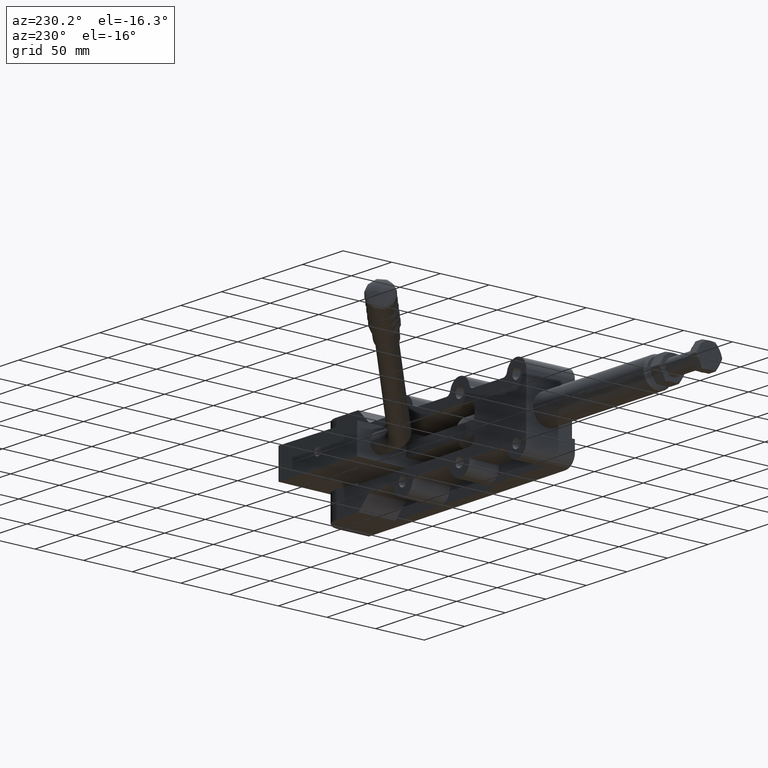
[diagram: clean part render]
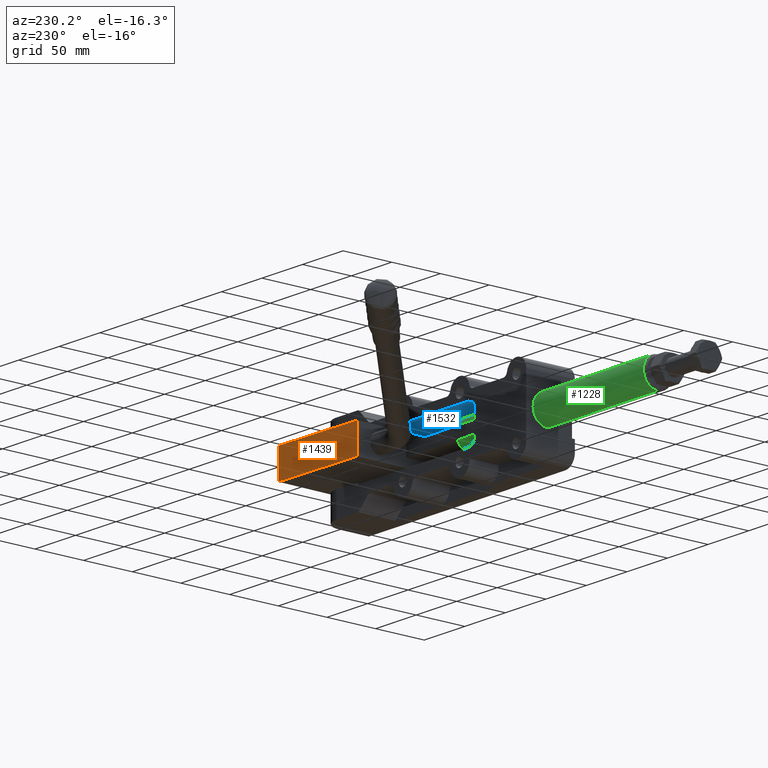
[diagram: same view with three faces highlighted in distinct colors, each labeled with its STEP entity id]
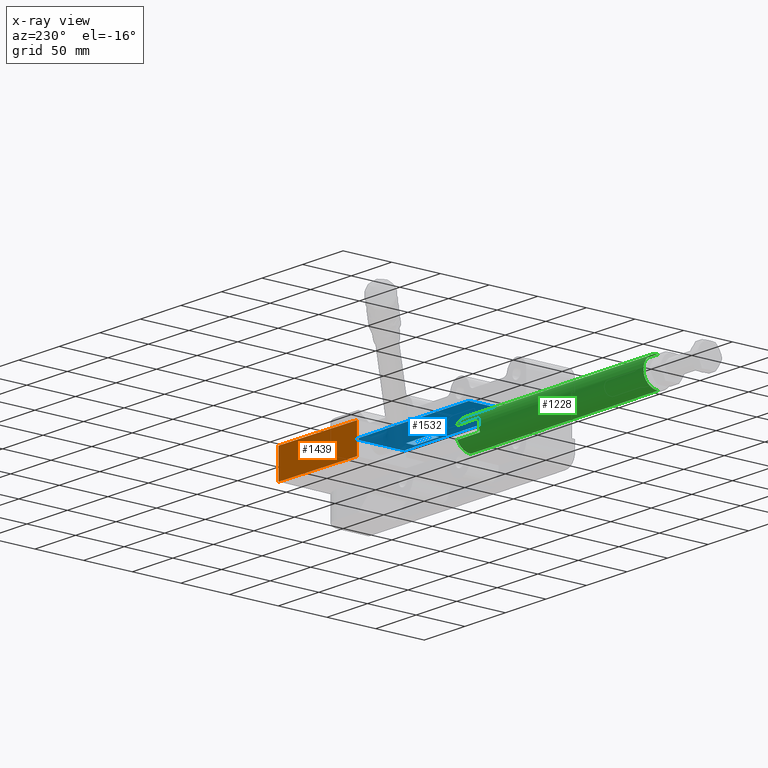
[diagram: x-ray of the same camera — body ghosted, the three highlighted faces saturated]
A machine part, auxiliary view with three faces highlighted in distinct colors.
The next image is the same camera in x-ray (body ghosted, the three faces saturated) — at least one of them is partly hidden behind the body in this view.
Their STEP definitions:

[orange] entity #1439 — the highlighted planar face has unit normal (-0.0179, 0.9998, -0).
#17 = CARTESIAN_POINT ( 'NONE',  ( 32.06023788298323800, 94.56523584020034400, -14.74999999999975500 ) ) ;
#46 = EDGE_CURVE ( 'NONE', #2836, #2387, #5923, .T. ) ;
#82 = EDGE_CURVE ( 'NONE', #1716, #4617, #1524, .T. ) ;
#145 = VECTOR ( 'NONE', #2389, 1000.000000000000100 ) ;
#153 = AXIS2_PLACEMENT_3D ( 'NONE', #2150, #6640, #6621 ) ;
#214 = FACE_OUTER_BOUND ( 'NONE', #6094, .T. ) ;
#334 = ORIENTED_EDGE ( 'NONE', *, *, #46, .T. ) ;
#382 = CIRCLE ( 'NONE', #6369, 4.250000000000008900 ) ;
#940 = LINE ( 'NONE', #6187, #1267 ) ;
#1267 = VECTOR ( 'NONE', #1398, 1000.000000000000000 ) ;
#1398 = DIRECTION ( 'NONE',  ( -9.059614584387263000E-016, 2.005522244806321500E-015, -1.000000000000000000 ) ) ;
#1420 = EDGE_CURVE ( 'NONE', #4689, #4672, #382, .T. ) ;
#1439 = ADVANCED_FACE ( 'NONE', ( #4235, #214 ), #2444, .T. ) ;
#1454 = DIRECTION ( 'NONE',  ( -0.9999995775315530000, 0.0009192043927261506100, 0.0000000000000000000 ) ) ;
#1479 = EDGE_LOOP ( 'NONE', ( #1862, #6175 ) ) ;
#1524 = LINE ( 'NONE', #1855, #145 ) ;
#1626 = AXIS2_PLACEMENT_3D ( 'NONE', #4588, #4688, #6670 ) ;
#1716 = VERTEX_POINT ( 'NONE', #17 ) ;
#1855 = CARTESIAN_POINT ( 'NONE',  ( 32.06023788298323800, 94.56523584020034400, -14.74999999999975500 ) ) ;
#1862 = ORIENTED_EDGE ( 'NONE', *, *, #2807, .F. ) ;
#2150 = CARTESIAN_POINT ( 'NONE',  ( 79.56021781573203100, 94.52157363154587700, 0.1000000000002443800 ) ) ;
#2376 = CARTESIAN_POINT ( 'NONE',  ( 127.0601977484807900, 94.47791142289131000, 14.95000000000015600 ) ) ;
#2387 = VERTEX_POINT ( 'NONE', #5944 ) ;
#2389 = DIRECTION ( 'NONE',  ( 0.9999995775315530000, -0.0009192043927261667600, -9.078045605557318500E-016 ) ) ;
#2444 = PLANE ( 'NONE',  #1626 ) ;
#2527 = CARTESIAN_POINT ( 'NONE',  ( 79.56021781573203100, 94.52157363154587700, 0.1000000000002443800 ) ) ;
#2688 = CARTESIAN_POINT ( 'NONE',  ( 127.0601977484807600, 94.47791142289135300, -14.74999999999984200 ) ) ;
#2807 = EDGE_CURVE ( 'NONE', #4672, #4689, #3051, .T. ) ;
#2836 = VERTEX_POINT ( 'NONE', #5264 ) ;
#2943 = VECTOR ( 'NONE', #3388, 1000.000000000000100 ) ;
#3051 = CIRCLE ( 'NONE', #153, 4.250000000000008900 ) ;
#3258 = CARTESIAN_POINT ( 'NONE',  ( 75.31021961122291900, 94.52548025021496900, 0.1000000000002443800 ) ) ;
#3284 = CARTESIAN_POINT ( 'NONE',  ( 83.81021602024112800, 94.51766701287680000, 0.1000000000002448900 ) ) ;
#3301 = EDGE_CURVE ( 'NONE', #2387, #4617, #3332, .T. ) ;
#3332 = LINE ( 'NONE', #2376, #4565 ) ;
#3388 = DIRECTION ( 'NONE',  ( 0.9999995775315530000, -0.0009192043927261667600, -9.078045605557318500E-016 ) ) ;
#3469 = EDGE_CURVE ( 'NONE', #2836, #1716, #940, .T. ) ;
#4150 = DIRECTION ( 'NONE',  ( 0.0009192043927261672000, 0.9999995775315531100, 2.004688633784216700E-015 ) ) ;
#4235 = FACE_BOUND ( 'NONE', #1479, .T. ) ;
#4425 = ORIENTED_EDGE ( 'NONE', *, *, #3301, .T. ) ;
#4455 = ORIENTED_EDGE ( 'NONE', *, *, #3469, .F. ) ;
#4565 = VECTOR ( 'NONE', #6579, 1000.000000000000000 ) ;
#4588 = CARTESIAN_POINT ( 'NONE',  ( 32.06023788298326600, 94.56523584020030200, 14.95000000000024300 ) ) ;
#4617 = VERTEX_POINT ( 'NONE', #2688 ) ;
#4672 = VERTEX_POINT ( 'NONE', #3258 ) ;
#4688 = DIRECTION ( 'NONE',  ( 0.0009192043927261667600, 0.9999995775315530000, 2.004688633784215900E-015 ) ) ;
#4689 = VERTEX_POINT ( 'NONE', #3284 ) ;
#4997 = CARTESIAN_POINT ( 'NONE',  ( 32.06023788298326600, 94.56523584020030200, 14.95000000000024300 ) ) ;
#5264 = CARTESIAN_POINT ( 'NONE',  ( 32.06023788298326600, 94.56523584020030200, 14.95000000000024300 ) ) ;
#5923 = LINE ( 'NONE', #4997, #2943 ) ;
#5944 = CARTESIAN_POINT ( 'NONE',  ( 127.0601977484807900, 94.47791142289131000, 14.95000000000015600 ) ) ;
#6094 = EDGE_LOOP ( 'NONE', ( #6275, #4455, #334, #4425 ) ) ;
#6175 = ORIENTED_EDGE ( 'NONE', *, *, #1420, .F. ) ;
#6187 = CARTESIAN_POINT ( 'NONE',  ( 32.06023788298326600, 94.56523584020030200, 14.95000000000024300 ) ) ;
#6275 = ORIENTED_EDGE ( 'NONE', *, *, #82, .F. ) ;
#6369 = AXIS2_PLACEMENT_3D ( 'NONE', #2527, #4150, #1454 ) ;
#6579 = DIRECTION ( 'NONE',  ( -9.059614584387263000E-016, 2.005522244806321500E-015, -1.000000000000000000 ) ) ;
#6621 = DIRECTION ( 'NONE',  ( -0.9999995775315530000, 0.0009192043927261506100, 0.0000000000000000000 ) ) ;
#6640 = DIRECTION ( 'NONE',  ( 0.0009192043927261672000, 0.9999995775315531100, 2.004688633784216700E-015 ) ) ;
#6670 = DIRECTION ( 'NONE',  ( 0.9999995775315530000, -0.0009192043927261667600, -9.078045605557318500E-016 ) ) ;

[blue] entity #1532 — the highlighted planar face has unit normal (0, 0, 1).
#73 = CARTESIAN_POINT ( 'NONE',  ( -127.0000000000000000, 1.000000000000000900, 18.99999999999998900 ) ) ;
#81 = EDGE_CURVE ( 'NONE', #4749, #423, #5588, .T. ) ;
#183 = VERTEX_POINT ( 'NONE', #404 ) ;
#212 = EDGE_CURVE ( 'NONE', #4115, #5389, #2451, .T. ) ;
#328 = ORIENTED_EDGE ( 'NONE', *, *, #212, .F. ) ;
#361 = CARTESIAN_POINT ( 'NONE',  ( 37.00000000000000700, 3.999999999999998200, 18.99999999999997900 ) ) ;
#397 = DIRECTION ( 'NONE',  ( -1.000000000000000000, -0.0000000000000000000, 7.461176240760461400E-017 ) ) ;
#404 = CARTESIAN_POINT ( 'NONE',  ( 67.00000000000000000, 13.00000000000000000, 18.99999999999997500 ) ) ;
#423 = VERTEX_POINT ( 'NONE', #73 ) ;
#539 = VECTOR ( 'NONE', #3927, 1000.000000000000000 ) ;
#741 = ORIENTED_EDGE ( 'NONE', *, *, #1216, .F. ) ;
#772 = CARTESIAN_POINT ( 'NONE',  ( -55.99999999999999300, 1.000000000000000900, 18.99999999999998600 ) ) ;
#782 = VECTOR ( 'NONE', #6260, 1000.000000000000000 ) ;
#784 = CARTESIAN_POINT ( 'NONE',  ( 37.00000000000000700, 0.0000000000000000000, 18.99999999999997900 ) ) ;
#995 = CARTESIAN_POINT ( 'NONE',  ( -55.99999999999999300, -201.3764965632369700, 18.99999999999998600 ) ) ;
#1033 = VECTOR ( 'NONE', #3054, 1000.000000000000000 ) ;
#1096 = LINE ( 'NONE', #995, #782 ) ;
#1170 = ORIENTED_EDGE ( 'NONE', *, *, #1854, .F. ) ;
#1179 = VECTOR ( 'NONE', #3610, 1000.000000000000000 ) ;
#1216 = EDGE_CURVE ( 'NONE', #5389, #6503, #4151, .T. ) ;
#1291 = EDGE_CURVE ( 'NONE', #183, #6503, #6473, .T. ) ;
#1494 = DIRECTION ( 'NONE',  ( -0.0000000000000000000, 1.000000000000000000, -0.0000000000000000000 ) ) ;
#1532 = ADVANCED_FACE ( 'NONE', ( #3575, #2360 ), #4813, .F. ) ;
#1843 = EDGE_CURVE ( 'NONE', #6342, #3949, #5082, .T. ) ;
#1854 = EDGE_CURVE ( 'NONE', #4749, #1894, #3660, .T. ) ;
#1894 = VERTEX_POINT ( 'NONE', #5140 ) ;
#1909 = ORIENTED_EDGE ( 'NONE', *, *, #2905, .T. ) ;
#2013 = EDGE_CURVE ( 'NONE', #6342, #5888, #1096, .T. ) ;
#2015 = CARTESIAN_POINT ( 'NONE',  ( -55.99999999999999300, 51.00000000000000000, 18.99999999999998600 ) ) ;
#2095 = EDGE_LOOP ( 'NONE', ( #1170, #6349, #4136, #5521, #3385, #5278 ) ) ;
#2360 = FACE_OUTER_BOUND ( 'NONE', #2095, .T. ) ;
#2451 = LINE ( 'NONE', #6230, #1033 ) ;
#2756 = VECTOR ( 'NONE', #1494, 1000.000000000000000 ) ;
#2905 = EDGE_CURVE ( 'NONE', #4115, #183, #3134, .T. ) ;
#3019 = CARTESIAN_POINT ( 'NONE',  ( -56.00000000000000000, 4.000000000000003600, 18.99999999999998900 ) ) ;
#3054 = DIRECTION ( 'NONE',  ( -1.000000000000000000, -0.0000000000000000000, -0.0000000000000000000 ) ) ;
#3134 = LINE ( 'NONE', #4730, #5624 ) ;
#3176 = CARTESIAN_POINT ( 'NONE',  ( 37.00000000000000700, 13.00000000000000000, 18.99999999999997900 ) ) ;
#3274 = EDGE_CURVE ( 'NONE', #3949, #423, #4739, .T. ) ;
#3341 = CARTESIAN_POINT ( 'NONE',  ( -55.99999999999999300, 13.00000000000001100, 18.99999999999998600 ) ) ;
#3385 = ORIENTED_EDGE ( 'NONE', *, *, #2013, .T. ) ;
#3400 = CARTESIAN_POINT ( 'NONE',  ( -127.0000000000000000, 51.00000000000000000, 18.99999999999998900 ) ) ;
#3432 = CARTESIAN_POINT ( 'NONE',  ( -127.0000000000000000, 4.000000000000000000, 18.99999999999998900 ) ) ;
#3547 = DIRECTION ( 'NONE',  ( -0.0000000000000000000, 1.000000000000000000, -0.0000000000000000000 ) ) ;
#3575 = FACE_BOUND ( 'NONE', #6577, .T. ) ;
#3578 = DIRECTION ( 'NONE',  ( 1.000000000000000000, 0.0000000000000000000, -7.461176240760461400E-017 ) ) ;
#3607 = CARTESIAN_POINT ( 'NONE',  ( 67.00000000000000000, 4.000000000000000000, 18.99999999999998900 ) ) ;
#3610 = DIRECTION ( 'NONE',  ( -1.000000000000000000, -0.0000000000000000000, -0.0000000000000000000 ) ) ;
#3660 = LINE ( 'NONE', #4859, #6299 ) ;
#3755 = AXIS2_PLACEMENT_3D ( 'NONE', #5876, #4292, #4836 ) ;
#3927 = DIRECTION ( 'NONE',  ( 0.0000000000000000000, -1.000000000000000000, 0.0000000000000000000 ) ) ;
#3949 = VERTEX_POINT ( 'NONE', #3432 ) ;
#4115 = VERTEX_POINT ( 'NONE', #3607 ) ;
#4136 = ORIENTED_EDGE ( 'NONE', *, *, #3274, .F. ) ;
#4151 = LINE ( 'NONE', #784, #2756 ) ;
#4167 = VECTOR ( 'NONE', #5539, 1000.000000000000000 ) ;
#4292 = DIRECTION ( 'NONE',  ( 7.461176240760461400E-017, 0.0000000000000000000, 1.000000000000000000 ) ) ;
#4396 = CARTESIAN_POINT ( 'NONE',  ( 83.49999999999998600, 1.000000000000000900, 18.99999999999997500 ) ) ;
#4428 = CARTESIAN_POINT ( 'NONE',  ( -135.9236093561576700, 4.000000000000000000, 18.99999999999998900 ) ) ;
#4730 = CARTESIAN_POINT ( 'NONE',  ( 67.00000000000000000, 0.0000000000000000000, 18.99999999999997500 ) ) ;
#4739 = LINE ( 'NONE', #3400, #539 ) ;
#4749 = VERTEX_POINT ( 'NONE', #4396 ) ;
#4813 = PLANE ( 'NONE',  #3755 ) ;
#4836 = DIRECTION ( 'NONE',  ( 1.000000000000000000, 0.0000000000000000000, -7.461176240760461400E-017 ) ) ;
#4859 = CARTESIAN_POINT ( 'NONE',  ( 83.49999999999998600, -201.3764965632369700, 18.99999999999997500 ) ) ;
#5066 = LINE ( 'NONE', #6735, #6447 ) ;
#5082 = LINE ( 'NONE', #4428, #1179 ) ;
#5088 = VECTOR ( 'NONE', #397, 1000.000000000000000 ) ;
#5140 = CARTESIAN_POINT ( 'NONE',  ( 83.49999999999998600, 51.00000000000000000, 18.99999999999997500 ) ) ;
#5278 = ORIENTED_EDGE ( 'NONE', *, *, #6361, .T. ) ;
#5389 = VERTEX_POINT ( 'NONE', #361 ) ;
#5521 = ORIENTED_EDGE ( 'NONE', *, *, #1843, .F. ) ;
#5539 = DIRECTION ( 'NONE',  ( -1.000000000000000000, -0.0000000000000000000, 7.461176240760461400E-017 ) ) ;
#5588 = LINE ( 'NONE', #772, #4167 ) ;
#5624 = VECTOR ( 'NONE', #6209, 1000.000000000000000 ) ;
#5876 = CARTESIAN_POINT ( 'NONE',  ( -55.99999999999999300, -201.3764965632369700, 18.99999999999998600 ) ) ;
#5888 = VERTEX_POINT ( 'NONE', #2015 ) ;
#6056 = ORIENTED_EDGE ( 'NONE', *, *, #1291, .T. ) ;
#6209 = DIRECTION ( 'NONE',  ( -0.0000000000000000000, 1.000000000000000000, -0.0000000000000000000 ) ) ;
#6230 = CARTESIAN_POINT ( 'NONE',  ( -135.9236093561576700, 4.000000000000000000, 18.99999999999998900 ) ) ;
#6260 = DIRECTION ( 'NONE',  ( -0.0000000000000000000, 1.000000000000000000, -0.0000000000000000000 ) ) ;
#6299 = VECTOR ( 'NONE', #3547, 1000.000000000000000 ) ;
#6342 = VERTEX_POINT ( 'NONE', #3019 ) ;
#6349 = ORIENTED_EDGE ( 'NONE', *, *, #81, .T. ) ;
#6361 = EDGE_CURVE ( 'NONE', #5888, #1894, #5066, .T. ) ;
#6447 = VECTOR ( 'NONE', #3578, 1000.000000000000000 ) ;
#6473 = LINE ( 'NONE', #3341, #5088 ) ;
#6503 = VERTEX_POINT ( 'NONE', #3176 ) ;
#6577 = EDGE_LOOP ( 'NONE', ( #741, #328, #1909, #6056 ) ) ;
#6735 = CARTESIAN_POINT ( 'NONE',  ( -55.99999999999999300, 51.00000000000000000, 18.99999999999998600 ) ) ;

[green] entity #1228 — the highlighted cylindrical surface (edge-blend (fillet) strip) has radius 15 mm, axis along (-1, -0, -0).
#118 = VERTEX_POINT ( 'NONE', #6570 ) ;
#142 = VECTOR ( 'NONE', #2692, 1000.000000000000000 ) ;
#150 = CARTESIAN_POINT ( 'NONE',  ( -59.98840368756777500, 29.00000000000007100, -1.838806884535415000E-013 ) ) ;
#180 = CIRCLE ( 'NONE', #684, 15.00000000000000000 ) ;
#186 = CARTESIAN_POINT ( 'NONE',  ( -29.98840368756777900, 29.00000000000007100, -1.838806884535415000E-013 ) ) ;
#400 = EDGE_CURVE ( 'NONE', #5424, #816, #3090, .T. ) ;
#646 = ORIENTED_EDGE ( 'NONE', *, *, #5647, .T. ) ;
#675 = DIRECTION ( 'NONE',  ( 0.0000000000000000000, 0.0000000000000000000, 1.000000000000000000 ) ) ;
#684 = AXIS2_PLACEMENT_3D ( 'NONE', #993, #4686, #1517 ) ;
#686 = ORIENTED_EDGE ( 'NONE', *, *, #400, .F. ) ;
#816 = VERTEX_POINT ( 'NONE', #5144 ) ;
#885 = VERTEX_POINT ( 'NONE', #3629 ) ;
#993 = CARTESIAN_POINT ( 'NONE',  ( -31.98840368756771100, 29.00000000000007100, -1.838806884535415000E-013 ) ) ;
#1228 = ADVANCED_FACE ( 'NONE', ( #6792 ), #2602, .T. ) ;
#1270 = DIRECTION ( 'NONE',  ( -1.000000000000000000, 0.0000000000000000000, 0.0000000000000000000 ) ) ;
#1355 = EDGE_CURVE ( 'NONE', #5424, #885, #3494, .T. ) ;
#1396 = VECTOR ( 'NONE', #2212, 1000.000000000000000 ) ;
#1517 = DIRECTION ( 'NONE',  ( 0.0000000000000000000, 0.0000000000000000000, -1.000000000000000000 ) ) ;
#1547 = ORIENTED_EDGE ( 'NONE', *, *, #1355, .T. ) ;
#1678 = LINE ( 'NONE', #3089, #4316 ) ;
#1700 = EDGE_CURVE ( 'NONE', #118, #5555, #1678, .T. ) ;
#1793 = DIRECTION ( 'NONE',  ( 1.000000000000000000, -0.0000000000000000000, -0.0000000000000000000 ) ) ;
#2212 = DIRECTION ( 'NONE',  ( -1.000000000000000000, -0.0000000000000000000, -0.0000000000000000000 ) ) ;
#2253 = CARTESIAN_POINT ( 'NONE',  ( -59.98840368756777500, 42.70364914904062200, 6.099999999999815800 ) ) ;
#2394 = VERTEX_POINT ( 'NONE', #2253 ) ;
#2420 = AXIS2_PLACEMENT_3D ( 'NONE', #4962, #1793, #5496 ) ;
#2504 = CARTESIAN_POINT ( 'NONE',  ( -31.98840368756771100, 29.00000000000007100, 14.99999999999981500 ) ) ;
#2531 = DIRECTION ( 'NONE',  ( 0.0000000000000000000, 0.0000000000000000000, 1.000000000000000000 ) ) ;
#2602 = CYLINDRICAL_SURFACE ( 'NONE', #4508, 15.00000000000000000 ) ;
#2671 = AXIS2_PLACEMENT_3D ( 'NONE', #150, #3826, #675 ) ;
#2692 = DIRECTION ( 'NONE',  ( -1.000000000000000000, -0.0000000000000000000, -0.0000000000000000000 ) ) ;
#2746 = ORIENTED_EDGE ( 'NONE', *, *, #5128, .T. ) ;
#2878 = CARTESIAN_POINT ( 'NONE',  ( -29.98840368756777900, 42.70364914904062200, 6.099999999999814000 ) ) ;
#2933 = EDGE_CURVE ( 'NONE', #885, #2394, #5459, .T. ) ;
#3089 = CARTESIAN_POINT ( 'NONE',  ( -29.98840368756777900, 29.00000000000007500, -15.00000000000018300 ) ) ;
#3090 = LINE ( 'NONE', #3752, #142 ) ;
#3433 = EDGE_CURVE ( 'NONE', #5788, #6764, #5321, .T. ) ;
#3491 = CARTESIAN_POINT ( 'NONE',  ( -59.98840368756777500, 42.70364914904062200, -6.100000000000183500 ) ) ;
#3494 = CIRCLE ( 'NONE', #5579, 15.00000000000000000 ) ;
#3626 = CIRCLE ( 'NONE', #2671, 15.00000000000000000 ) ;
#3629 = CARTESIAN_POINT ( 'NONE',  ( -31.98840368756771100, 42.70364914904063600, 6.099999999999815800 ) ) ;
#3752 = CARTESIAN_POINT ( 'NONE',  ( -29.98840368756777900, 29.00000000000007100, 14.99999999999981500 ) ) ;
#3783 = DIRECTION ( 'NONE',  ( -1.000000000000000000, -0.0000000000000000000, -0.0000000000000000000 ) ) ;
#3826 = DIRECTION ( 'NONE',  ( -1.000000000000000000, 0.0000000000000000000, 0.0000000000000000000 ) ) ;
#3989 = CARTESIAN_POINT ( 'NONE',  ( -31.98840368756771100, 42.70364914904062900, -6.100000000000183500 ) ) ;
#4316 = VECTOR ( 'NONE', #3783, 1000.000000000000000 ) ;
#4326 = CARTESIAN_POINT ( 'NONE',  ( -262.9884036875676500, 29.00000000000007500, -15.00000000000018300 ) ) ;
#4508 = AXIS2_PLACEMENT_3D ( 'NONE', #186, #5153, #2531 ) ;
#4544 = CARTESIAN_POINT ( 'NONE',  ( -31.98840368756771100, 29.00000000000007100, -1.838806884535415000E-013 ) ) ;
#4686 = DIRECTION ( 'NONE',  ( -1.000000000000000000, 0.0000000000000000000, 0.0000000000000000000 ) ) ;
#4962 = CARTESIAN_POINT ( 'NONE',  ( -262.9884036875676500, 29.00000000000007100, -1.838806884535415000E-013 ) ) ;
#5000 = EDGE_CURVE ( 'NONE', #6764, #118, #180, .T. ) ;
#5128 = EDGE_CURVE ( 'NONE', #2394, #5788, #3626, .T. ) ;
#5144 = CARTESIAN_POINT ( 'NONE',  ( -262.9884036875676500, 29.00000000000007100, 14.99999999999981500 ) ) ;
#5153 = DIRECTION ( 'NONE',  ( -1.000000000000000000, -0.0000000000000000000, -0.0000000000000000000 ) ) ;
#5159 = VECTOR ( 'NONE', #6687, 1000.000000000000000 ) ;
#5321 = LINE ( 'NONE', #6166, #5159 ) ;
#5424 = VERTEX_POINT ( 'NONE', #2504 ) ;
#5459 = LINE ( 'NONE', #2878, #1396 ) ;
#5496 = DIRECTION ( 'NONE',  ( 0.0000000000000000000, 0.0000000000000000000, -1.000000000000000000 ) ) ;
#5555 = VERTEX_POINT ( 'NONE', #4326 ) ;
#5579 = AXIS2_PLACEMENT_3D ( 'NONE', #4544, #1270, #6410 ) ;
#5598 = ORIENTED_EDGE ( 'NONE', *, *, #3433, .T. ) ;
#5618 = ORIENTED_EDGE ( 'NONE', *, *, #1700, .T. ) ;
#5647 = EDGE_CURVE ( 'NONE', #5555, #816, #6596, .T. ) ;
#5788 = VERTEX_POINT ( 'NONE', #3491 ) ;
#6166 = CARTESIAN_POINT ( 'NONE',  ( -29.98840368756777900, 42.70364914904062200, -6.100000000000181700 ) ) ;
#6231 = ORIENTED_EDGE ( 'NONE', *, *, #5000, .T. ) ;
#6329 = EDGE_LOOP ( 'NONE', ( #6231, #5618, #646, #686, #1547, #6664, #2746, #5598 ) ) ;
#6410 = DIRECTION ( 'NONE',  ( 0.0000000000000000000, 0.0000000000000000000, -1.000000000000000000 ) ) ;
#6570 = CARTESIAN_POINT ( 'NONE',  ( -31.98840368756771100, 29.00000000000007500, -15.00000000000018300 ) ) ;
#6596 = CIRCLE ( 'NONE', #2420, 15.00000000000000000 ) ;
#6664 = ORIENTED_EDGE ( 'NONE', *, *, #2933, .T. ) ;
#6687 = DIRECTION ( 'NONE',  ( 1.000000000000000000, 0.0000000000000000000, 0.0000000000000000000 ) ) ;
#6764 = VERTEX_POINT ( 'NONE', #3989 ) ;
#6792 = FACE_OUTER_BOUND ( 'NONE', #6329, .T. ) ;